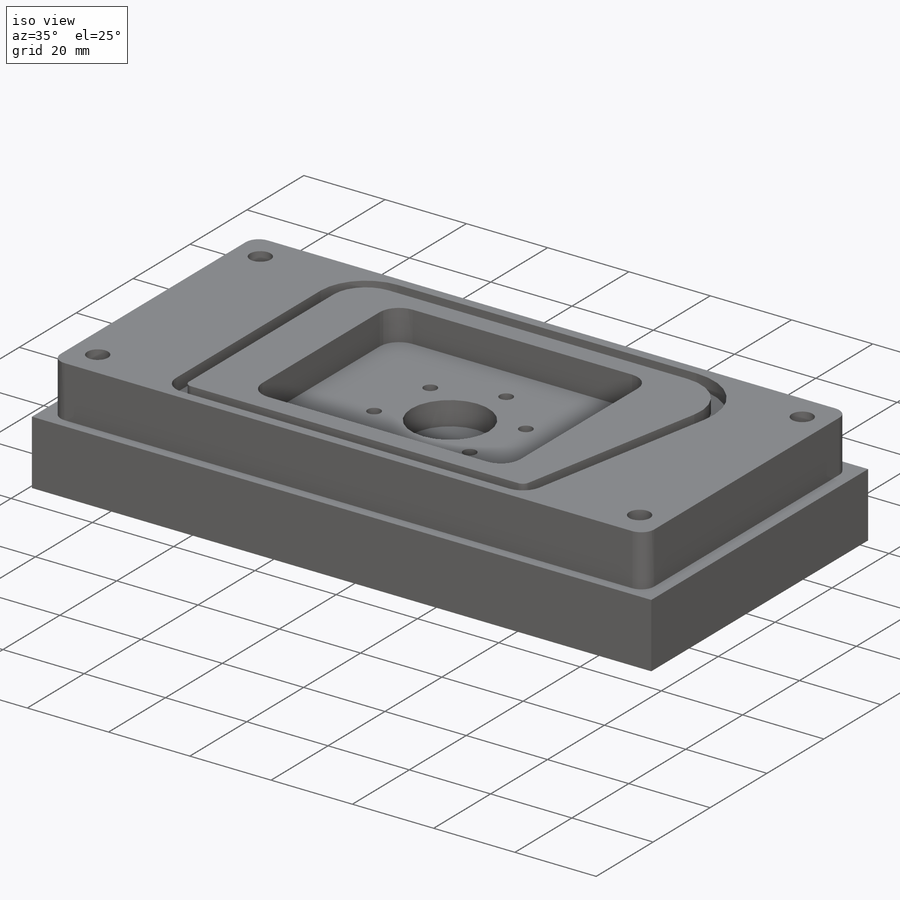
[diagram: iso view]
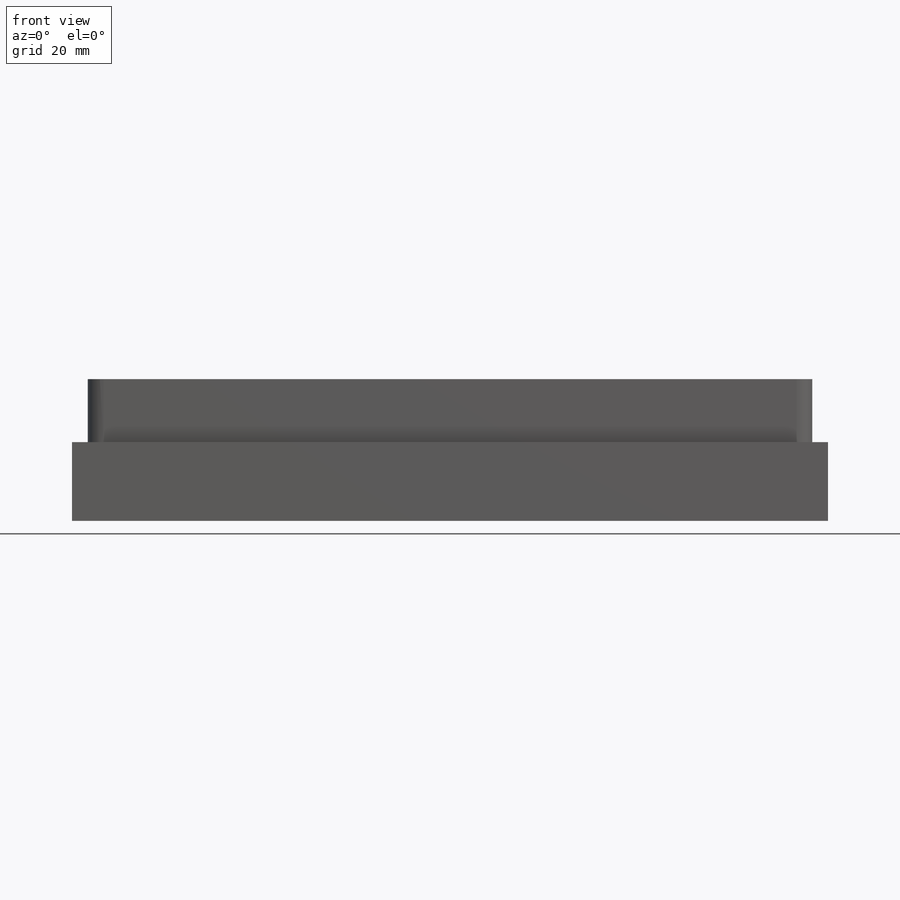
[diagram: front view]
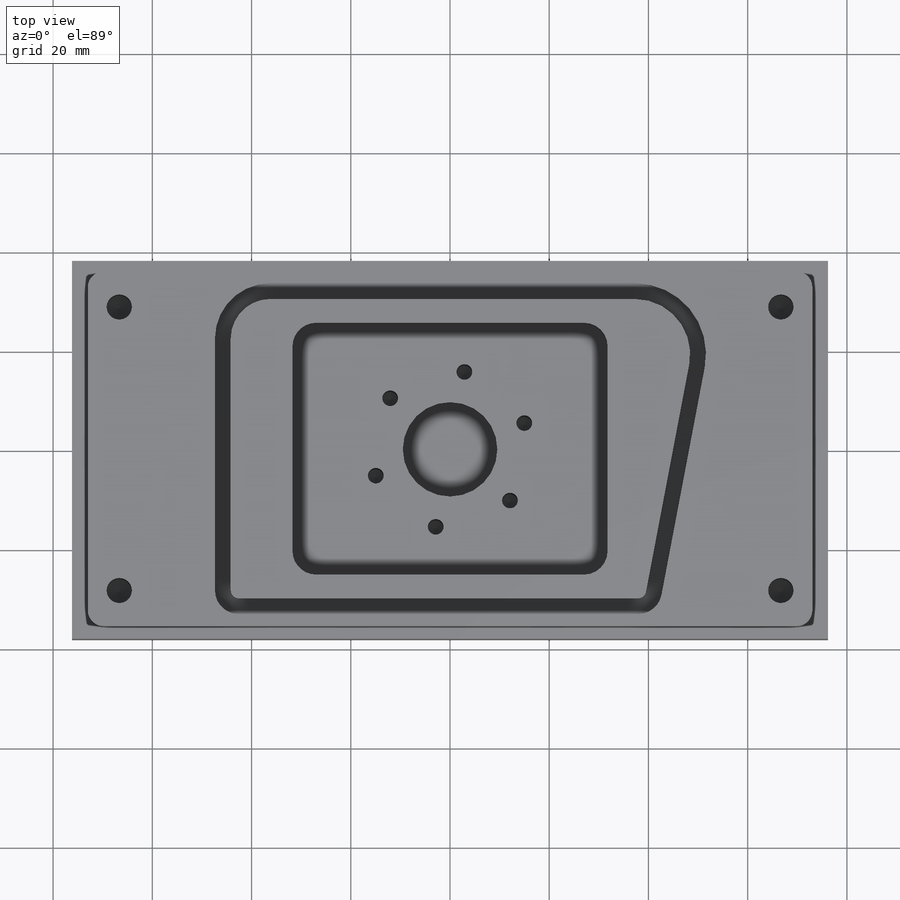
[diagram: top view]
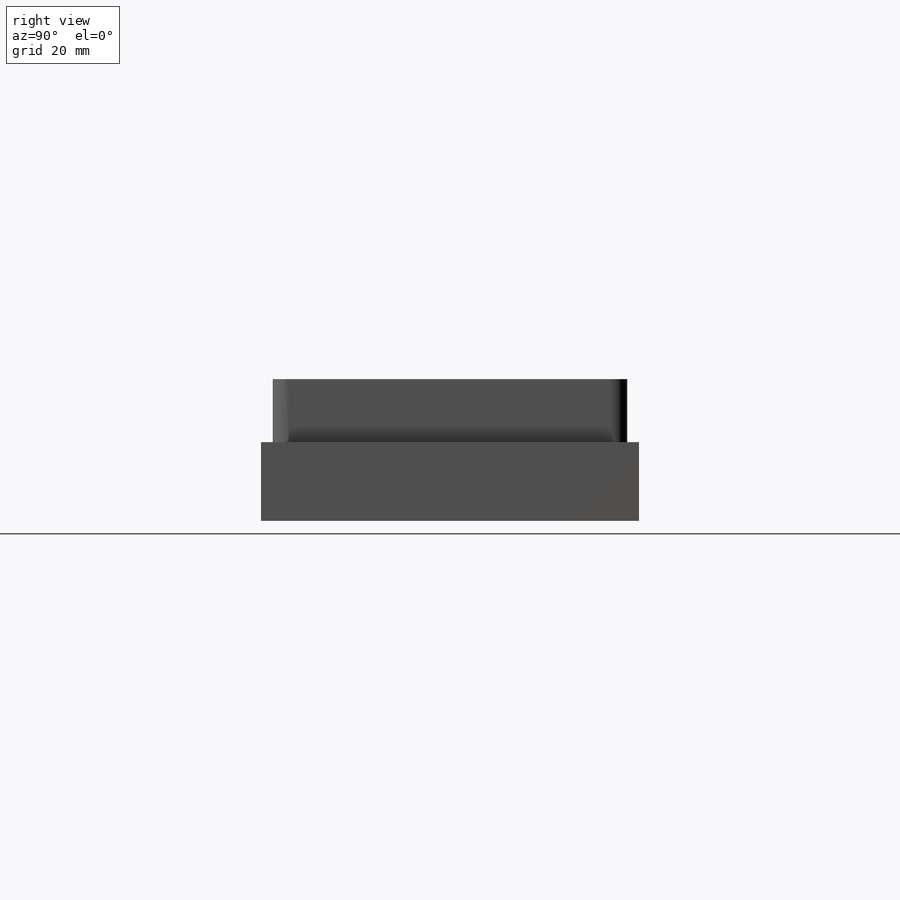
[diagram: right view]
SOLIDWORKS PART (.sldprt)
format: sldprt  version: not decoded by parser v0  size: 382,976 bytes
history: native  units: mm
features: sketch x9, cut_extrude x4, hole x2, material x1, extrude x1, pattern_circular x1 (+12 scaffold rows collapsed)
feature tree (30):
  scaffold x12  (default folders/planes/origin — collapsed)
  material  "Material <not specified>"
  sketch  "Sketch1"  dims[D1=38.1mm D2=38.1mm D3=76.2mm D4=76.2mm D5=152.4mm D6=152.4mm]
  extrude  "Boss-Extrude1"  Depth=28.575mm
  sketch  "Sketch2"  dims[D1=19.05mm]
  cut_extrude  "Cut-Extrude1"  Depth=13.462mm
  sketch  "Sketch4"  dims[D9=9.525mm D10=12.7mm D11=3.175mm D1=45.7962mm D2=45.7962mm D3=52.6288mm D4=40.5638mm D5=31.75mm D6=31.75mm D7=31.75mm D8=31.75mm D12=1.5875mm D13=1.5875mm D14=1.5875mm]
  cut_extrude  "Cut-Extrude3"  Depth=3.302mm
  sketch  "Sketch7"  dims[c1.D3=3.175mm c1.D1=3.175mm c1.D4=39.4462mm c2.D1=25.4mm c2.D2=25.4mm c2.D3=31.75mm c2.D5=31.75mm c3.D1=4.7625mm c3.D2=4.7625mm]
  cut_extrude  "Cut-Extrude4"  Depth=7.62mm
  hole  "#7 (0.201) Diameter Hole1"  Diameter=5.1054mm Depth=14.2748mm
  sketch  "Sketch9"  dims[D1=9.525mm D2=9.525mm D3=9.525mm D4=9.525mm D5=9.525mm D6=9.525mm D7=9.525mm D8=9.525mm]
  sketch  "Sketch8"  dims[hole-wizard template sketch: 47 standard entries collapsed; hole parameters kept: c15.Hole Depth=14.2748mm c15.D3=~14.816244mm c15.Drill Angle=118.0deg]
  sketch  "Sketch10"  dims[D5=3.175mm D1=3.175mm D2=3.175mm D3=~2.37998mm D4=~2.37998mm]
  cut_extrude  "Cut-Extrude5"  Depth=12.7mm
  hole  "1/8 (0.125) Diameter Hole1"  Diameter=3.175mm Depth=17.4752mm
  sketch  "Sketch14"  dims[c1.D1=~13.402807mm c2.D1=19.5deg c2.D2=15.875mm]
  sketch  "Sketch13"  dims[hole-wizard template sketch: 47 standard entries collapsed; hole parameters kept: c15.Hole Depth=17.4752mm c15.D3=~14.816244mm c15.Drill Angle=118.0deg]
  pattern_circular  "CirPattern1"  Count=6 Angle=60deg
decode coverage: 17 of 17 modeling features carry decoded parameters
note: ~ marks probable driven/reference dimensions
note: suppression state not decoded; provenance and decode notes live in map.json
